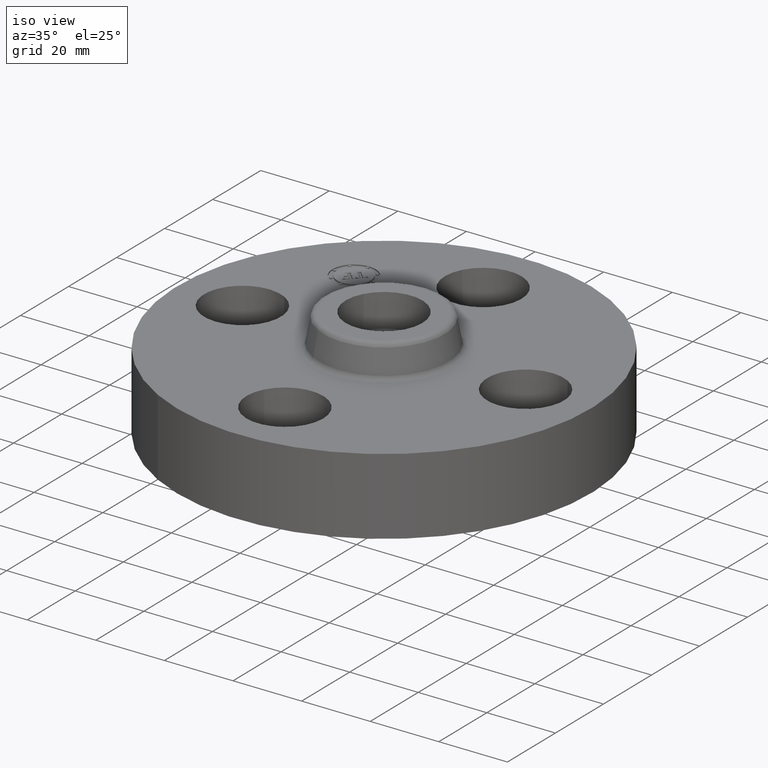
[diagram: clean part render]
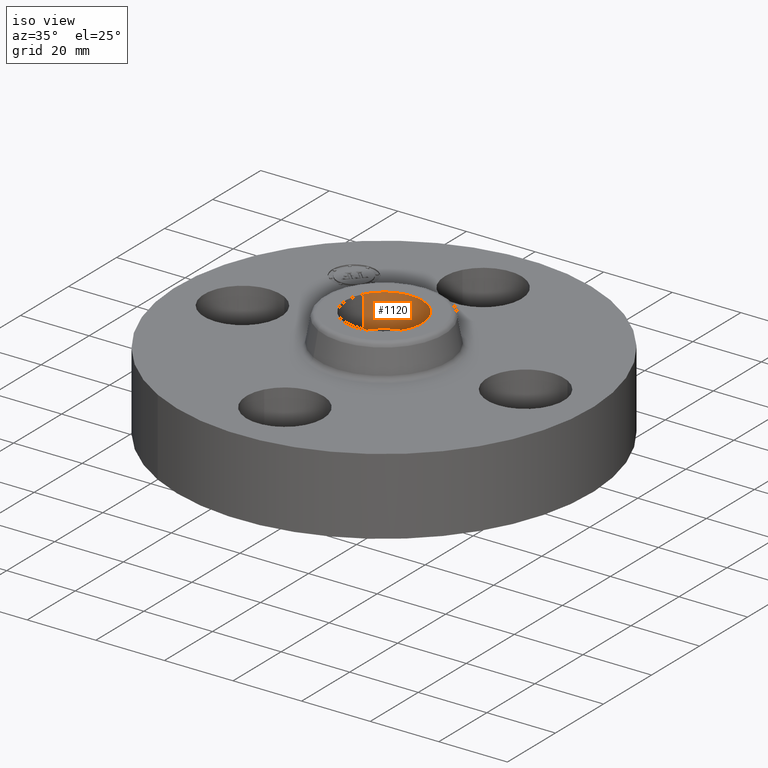
[diagram: same view with one face highlighted and labeled with its STEP entity id]
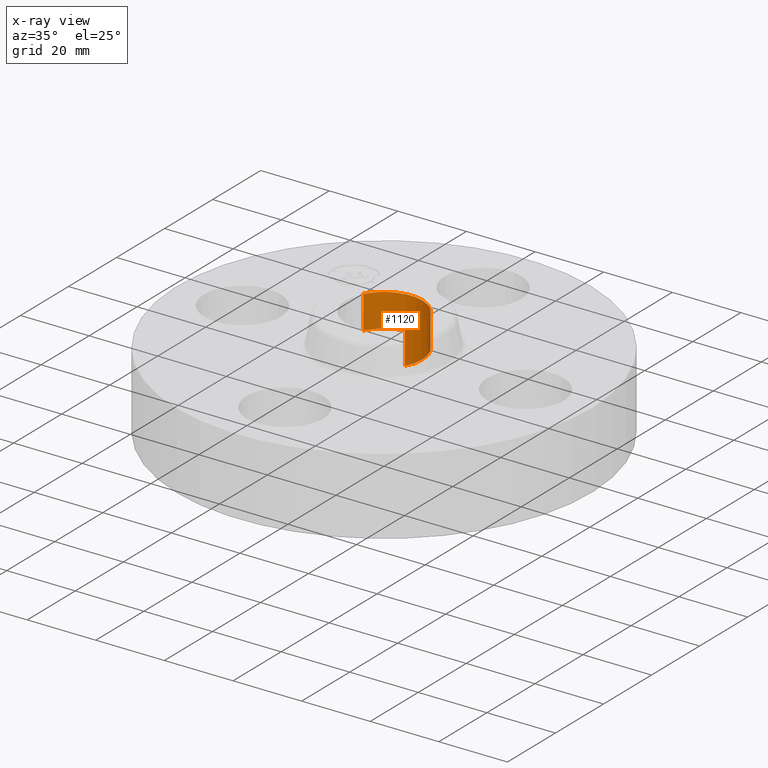
[diagram: x-ray of the same camera — body ghosted, the highlighted face saturated]
A machine part, iso view. The second image highlights one B-rep face of the part: STEP entity #1120.
The next image is the same camera in x-ray: the body ghosted, the highlighted face saturated — about 0% of this face is hidden behind the body in this view.
In plain terms, the highlighted cylindrical surface (partial cylindrical patch) has radius 11.176 mm, axis along (0, 0, -1).
Its self-contained STEP definition (entity closure, byte-faithful):
#42=AXIS2_PLACEMENT_3D('Circle Axis2P3D',#40,#41,$) ;
#1053=AXIS2_PLACEMENT_3D('Circle Axis2P3D',#1051,#1052,$) ;
#1102=AXIS2_PLACEMENT_3D('Cylinder Axis2P3D',#1099,#1100,#1101) ;
#40=CARTESIAN_POINT('Axis2P3D Location',(1.04902962957E-016,-6.99353086378E-017,0.870000000003)) ;
#44=CARTESIAN_POINT('Vertex',(-0.386136327233,0.210947236987,0.870000000003)) ;
#46=CARTESIAN_POINT('Vertex',(0.386136327233,-0.210947236987,0.870000000003)) ;
#1051=CARTESIAN_POINT('Axis2P3D Location',(6.99353086378E-017,-1.39870617276E-016,1.25000000001)) ;
#1055=CARTESIAN_POINT('Vertex',(-0.386136327233,0.210947236987,1.25000000001)) ;
#1057=CARTESIAN_POINT('Vertex',(0.386136327233,-0.210947236987,1.25000000001)) ;
#1099=CARTESIAN_POINT('Axis2P3D Location',(1.04902962957E-016,-6.99353086378E-017,1.24606299213)) ;
#1104=CARTESIAN_POINT('Line Origine',(-0.386136327233,0.210947236987,1.06)) ;
#1109=CARTESIAN_POINT('Line Origine',(0.386136327233,-0.210947236987,1.06)) ;
#41=DIRECTION('Axis2P3D Direction',(0.,0.,-0.0393700787402)) ;
#1052=DIRECTION('Axis2P3D Direction',(0.,0.,-0.0393700787402)) ;
#1100=DIRECTION('Axis2P3D Direction',(0.,0.,-0.0393700787402)) ;
#1101=DIRECTION('Axis2P3D XDirection',(0.0345504945626,-0.0188750212049,0.)) ;
#1105=DIRECTION('Vector Direction',(0.,0.,-0.0393700787402)) ;
#1110=DIRECTION('Vector Direction',(0.,0.,-0.0393700787402)) ;
#1106=VECTOR('Line Direction',#1105,0.0393700787402) ;
#1111=VECTOR('Line Direction',#1110,0.0393700787402) ;
#1115=ORIENTED_EDGE('',*,*,#1059,.F.) ;
#1116=ORIENTED_EDGE('',*,*,#1108,.F.) ;
#1117=ORIENTED_EDGE('',*,*,#48,.T.) ;
#1118=ORIENTED_EDGE('',*,*,#1113,.T.) ;
#1120=ADVANCED_FACE('PartBody',(#1119),#1103,.F.) ;
#43=CIRCLE('generated circle',#42,0.440000000002) ;
#1054=CIRCLE('generated circle',#1053,0.440000000002) ;
#1103=CYLINDRICAL_SURFACE('generated cylinder',#1102,0.440000000002) ;
#48=EDGE_CURVE('',#45,#47,#43,.T.) ;
#1059=EDGE_CURVE('',#1056,#1058,#1054,.T.) ;
#1108=EDGE_CURVE('',#45,#1056,#1107,.F.) ;
#1113=EDGE_CURVE('',#47,#1058,#1112,.F.) ;
#1114=EDGE_LOOP('',(#1115,#1116,#1117,#1118)) ;
#1119=FACE_OUTER_BOUND('',#1114,.T.) ;
#1107=LINE('Line',#1104,#1106) ;
#1112=LINE('Line',#1109,#1111) ;
#45=VERTEX_POINT('',#44) ;
#47=VERTEX_POINT('',#46) ;
#1056=VERTEX_POINT('',#1055) ;
#1058=VERTEX_POINT('',#1057) ;